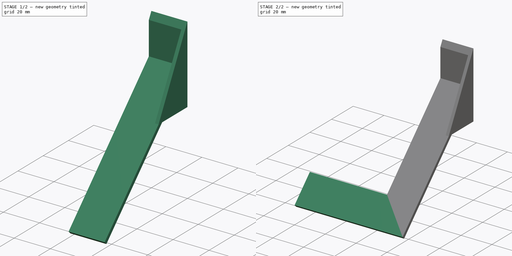
[diagram: build sequence overview — one tinted view per stage of 2, left to right]
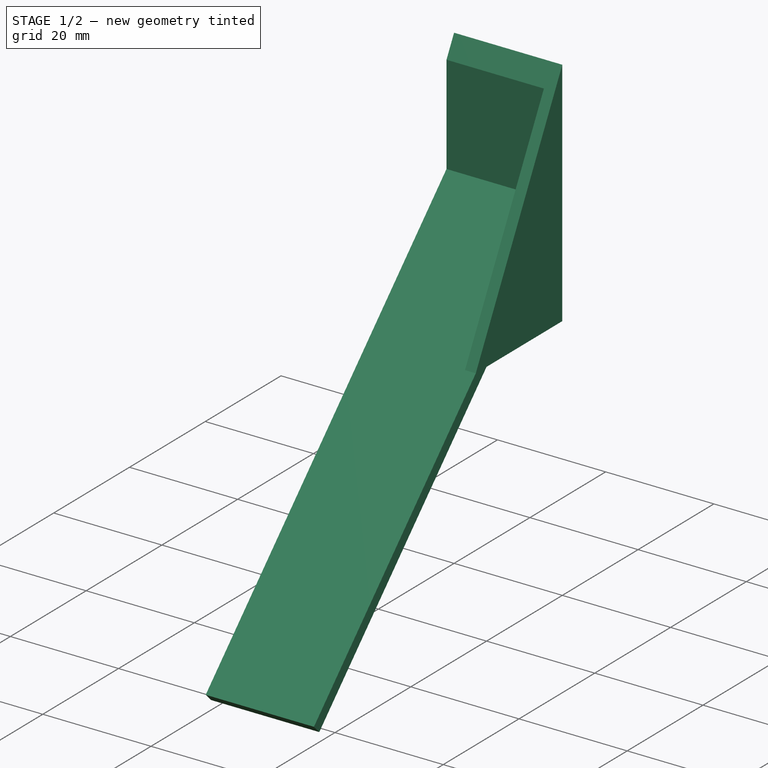
[diagram: stage 1 of 2 — iso view after this stage's code; geometry added in this stage tinted green]
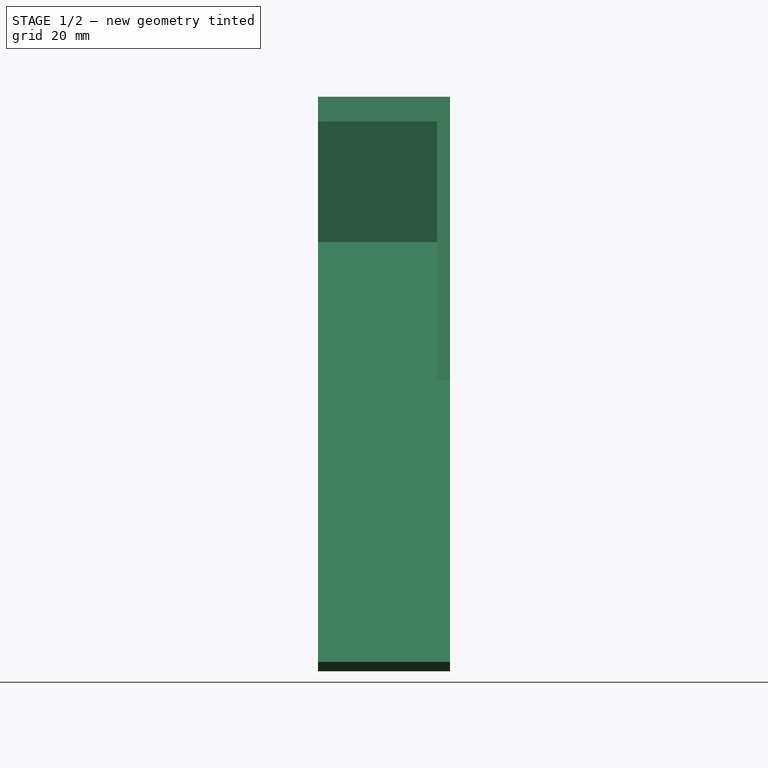
[diagram: stage 1 of 2 — front view after this stage's code; geometry added in this stage tinted green]
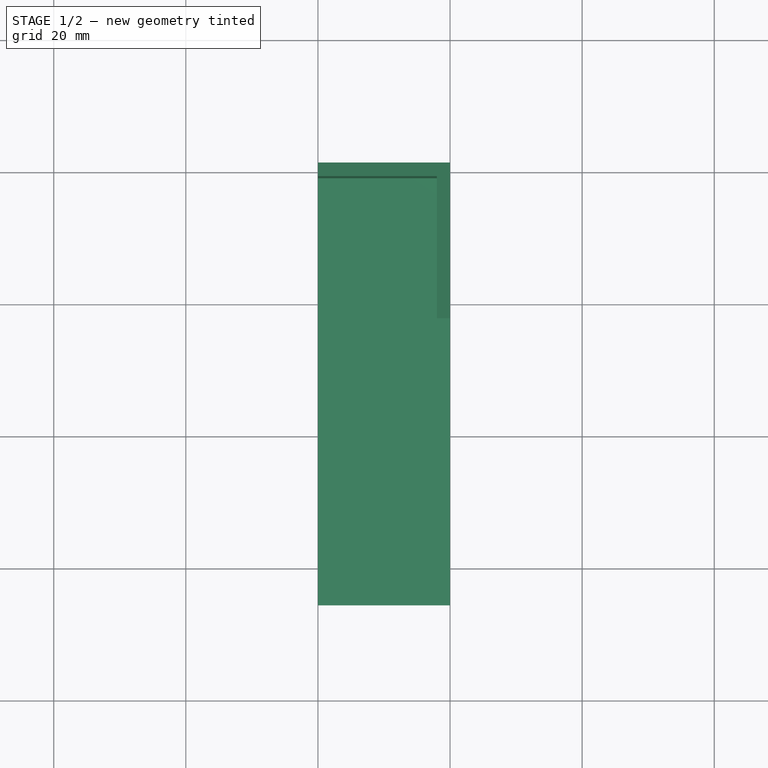
[diagram: stage 1 of 2 — top view after this stage's code; geometry added in this stage tinted green]
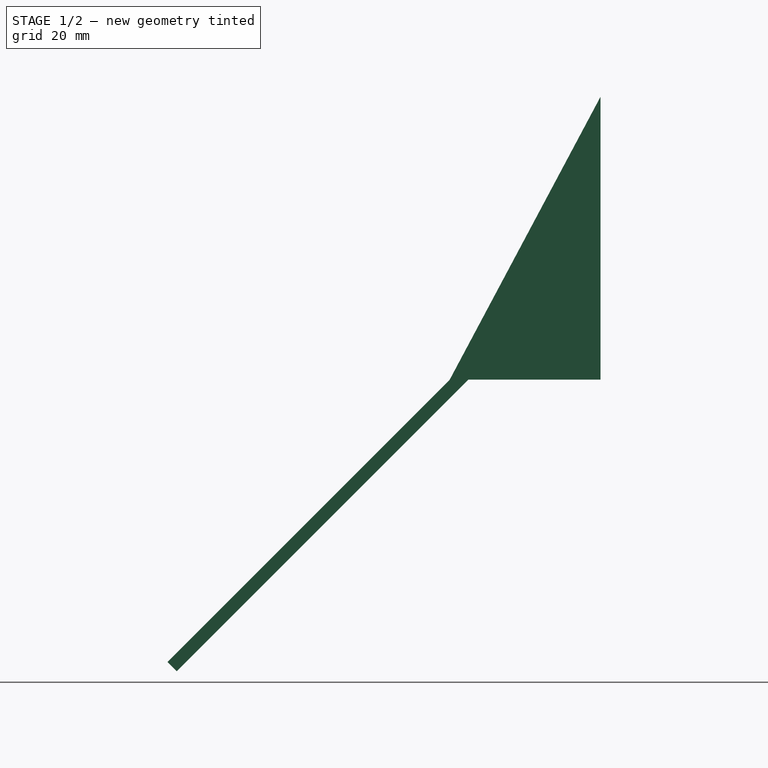
[diagram: stage 1 of 2 — right view after this stage's code; geometry added in this stage tinted green]
FCSTD DOCUMENT  (FreeCAD 1.0R39319 (Git))
Label: airConExhaustPipeGuide
License: All rights reserved
LicenseURL: https://en.wikipedia.org/wiki/All_rights_reserved
objects: PartDesign::Pad×3, Sketcher::SketchObject×1, PartDesign::Body×1
note: 12 computed .brp shape members not serialized (recipe doc carries the construction recipe); baked Part::Feature solids carry a one-line shape summary decoded from their .brp

FEATURE [Sketcher::SketchObject] Sketch
  ArcFitTolerance = 1e-06
  AttachmentSupport = -> [YZ_Plane]
  FullyConstrained = true
  MakeInternals = false
  MapMode = 5
  Placement = pos=(0,0,0) rot=(0.57735,0.57735,0.57735;2.0944rad)
  sketch-geometry (18):
    g0: LineSegment StartX=-64.1421 StartY=-44.1421 StartZ=0 EndX=-65.5563 EndY=-42.7279 EndZ=0
    g1: LineSegment StartX=0 StartY=42.8284 StartZ=0 EndX=0 EndY=22.8284 EndZ=0
    g2: LineSegment StartX=0 StartY=22.8284 StartZ=0 EndX=0 EndY=20 EndZ=0
    g3: LineSegment StartX=0 StartY=20 StartZ=0 EndX=0 EndY=0 EndZ=0
    g4: LineSegment [constr] StartX=0 StartY=22.8284 StartZ=0 EndX=-51.4142 EndY=-28.5858 EndZ=0
    g5: LineSegment StartX=-51.4142 StartY=-28.5858 StartZ=0 EndX=-65.5563 EndY=-42.7279 EndZ=0
    g6: LineSegment StartX=-64.1421 StartY=-44.1421 StartZ=0 EndX=-50 EndY=-30 EndZ=0
    g7: LineSegment [constr] StartX=-50 StartY=-30 StartZ=0 EndX=0 EndY=20 EndZ=0
    g8: LineSegment StartX=-51.4142 StartY=-28.5858 StartZ=0 EndX=-50 EndY=-30 EndZ=0
    g9: LineSegment StartX=0 StartY=0 StartZ=0 EndX=-20 EndY=0 EndZ=0
    g10: LineSegment StartX=0 StartY=42.8284 StartZ=0 EndX=-22.8284 EndY=0 EndZ=0
    g11: LineSegment StartX=-22.8284 StartY=0 StartZ=0 EndX=-20 EndY=0 EndZ=0
    g12: LineSegment StartX=-2 StartY=0 StartZ=0 EndX=-2 EndY=18 EndZ=0
    g13: LineSegment StartX=-2 StartY=18 StartZ=0 EndX=-50 EndY=-30 EndZ=0
    g14: LineSegment StartX=-51.4142 StartY=-28.5858 StartZ=0 EndX=-2 EndY=20.8284 EndZ=0
    g15: LineSegment StartX=-2 StartY=20.8284 StartZ=0 EndX=-2 EndY=39.0762 EndZ=0
    g16: LineSegment StartX=-2 StartY=39.0762 StartZ=0 EndX=0 EndY=42.8284 EndZ=0
    g17: LineSegment StartX=-2 StartY=0 StartZ=0 EndX=0 EndY=0 EndZ=0
  constraints (49):
    c: PointOnObject(g1,g-2)
    c: Vertical(g1)
    c: Coincident(g2,g1)
    c: PointOnObject(g2,g-2)
    c: Coincident(g3,g2)
    c: Coincident(g4,g1)
    c: Coincident(g5,g4)
    c: Coincident(g5,g0)
    c: Coincident(g7,g6)
    c: Coincident(g7,g2)
    c: Parallel(g4,g5)
    c: Parallel(g7,g6)
    c: Parallel(g7,g4)
    c: Coincident(g8,g4)
    c: Coincident(g8,g6)
    c: Perpendicular(g0,g6)
    c: Parallel(g8,g0)
    c: Distance(g0,g0) = 2
    c: Distance(g6,g6) = 20
    c: Distance(g6,g3) = 50
    c: Equal(g3,g1)
    c: Angle(g7,g3) = 0.785398
    c: Coincident(g6,g0)
    c: Coincident(g3,g-1)
    c: Coincident(g9,g3)
    c: PointOnObject(g9,g7)
    c: Horizontal(g9)
    c: Coincident(g10,g1)
    c: PointOnObject(g10,g4)
    c: PointOnObject(g10,g-1)
    c: DistanceY(g3,g3) = 20
    c: Coincident(g11,g10)
    c: Coincident(g11,g9)
    c: PointOnObject(g12,g9)
    c: PointOnObject(g12,g7)
    c: Vertical(g12)
    c: Coincident(g13,g12)
    c: Coincident(g13,g6)
    c: Coincident(g14,g4)
    c: PointOnObject(g14,g4)
    c: Coincident(g15,g14)
    c: PointOnObject(g15,g10)
    c: Vertical(g15)
    c: Coincident(g16,g15)
    c: Coincident(g16,g1)
    c: Distance(g1,g15) = 2
    c: PointOnObject(g12,g15)
    c: Coincident(g17,g12)
    c: Coincident(g17,g3)
FEATURE [PartDesign::Pad] Pad
  Direction = (1,0,0)
  Length = 2
  Length2 = 10
  Placement = pos=(0,0,0) rot=(1,1,1;2.0944rad)
  Profile = -> Sketch [Edge10,Edge12,Edge11,Edge6,Edge7,Edge8]
  ReferenceAxis = -> Sketch [N_Axis]
  Refine = true
  Reversed = true
  Suppressed = false
  Type = 0
FEATURE [PartDesign::Pad] Pad001
  BaseFeature = -> Pad
  Direction = (1,0,0)
  Length = 20
  Length2 = 10
  Placement = pos=(0,0,0) rot=(1,1,1;2.0944rad)
  Profile = -> Sketch [Edge13,Edge9,Edge8,Edge7,Edge6,Edge5,Edge4,Edge3,Edge14,Edge2,Edge16,Edge1]
  ReferenceAxis = -> Sketch [N_Axis]
  Refine = true
  Reversed = true
  Suppressed = false
  Type = 0
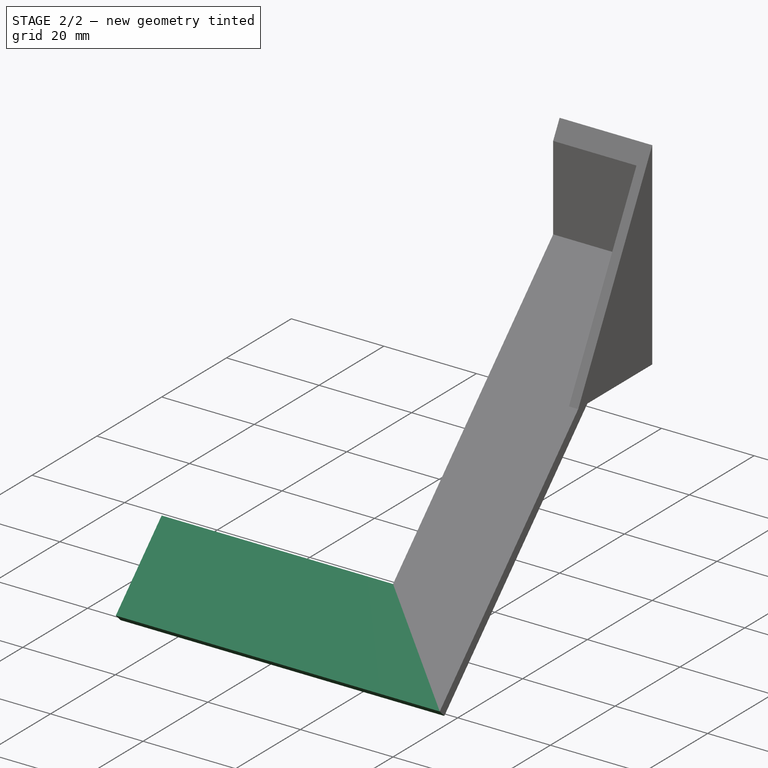
[diagram: stage 2 of 2 — iso view after this stage's code; geometry added in this stage tinted green]
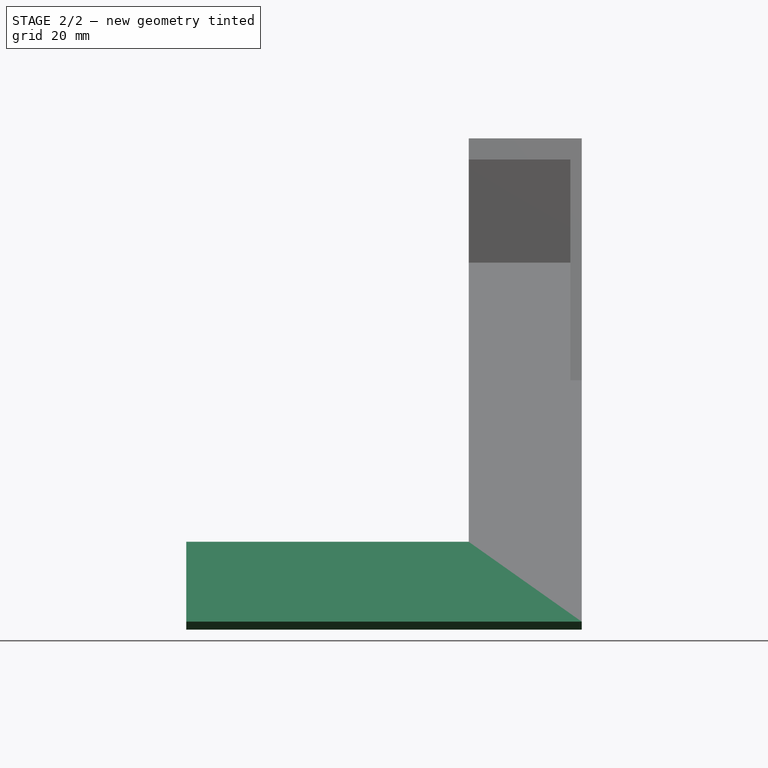
[diagram: stage 2 of 2 — front view after this stage's code; geometry added in this stage tinted green]
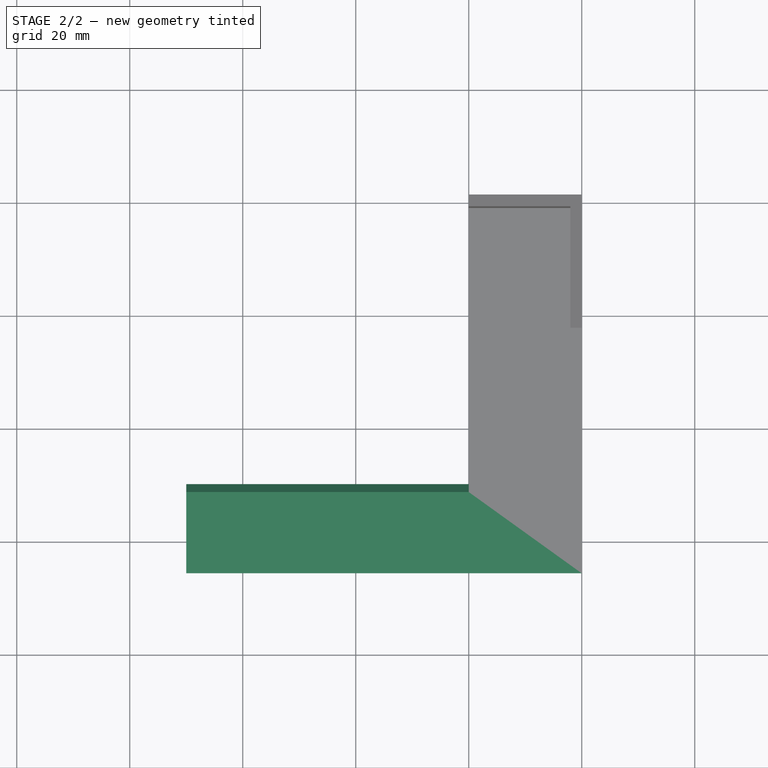
[diagram: stage 2 of 2 — top view after this stage's code; geometry added in this stage tinted green]
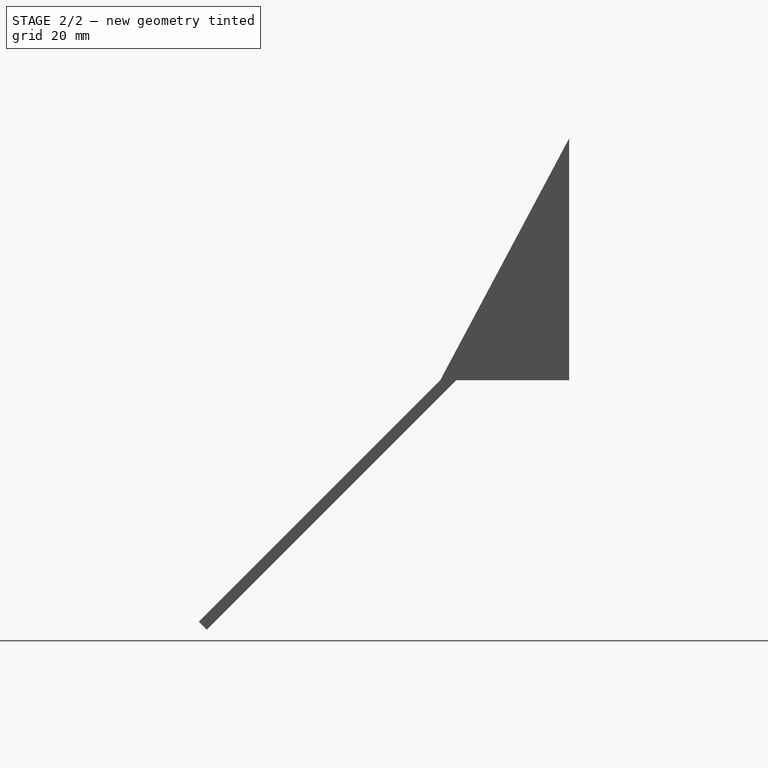
[diagram: stage 2 of 2 — right view after this stage's code; geometry added in this stage tinted green]
FEATURE [PartDesign::Pad] Pad002
  BaseFeature = -> Pad001
  Direction = (1,0,0)
  Length = 70
  Length2 = 10
  Placement = pos=(0,0,0) rot=(1,1,1;2.0944rad)
  Profile = -> Sketch [Edge16,Edge1,Edge2,Edge15]
  ReferenceAxis = -> Sketch [N_Axis]
  Refine = true
  Reversed = true
  Suppressed = false
  Type = 0
FEATURE [PartDesign::Body] Body
  AllowCompound = false
  Group = -> [Sketch,Pad,Pad001,Pad002]
  Origin = -> Origin
  Tip = -> Pad002
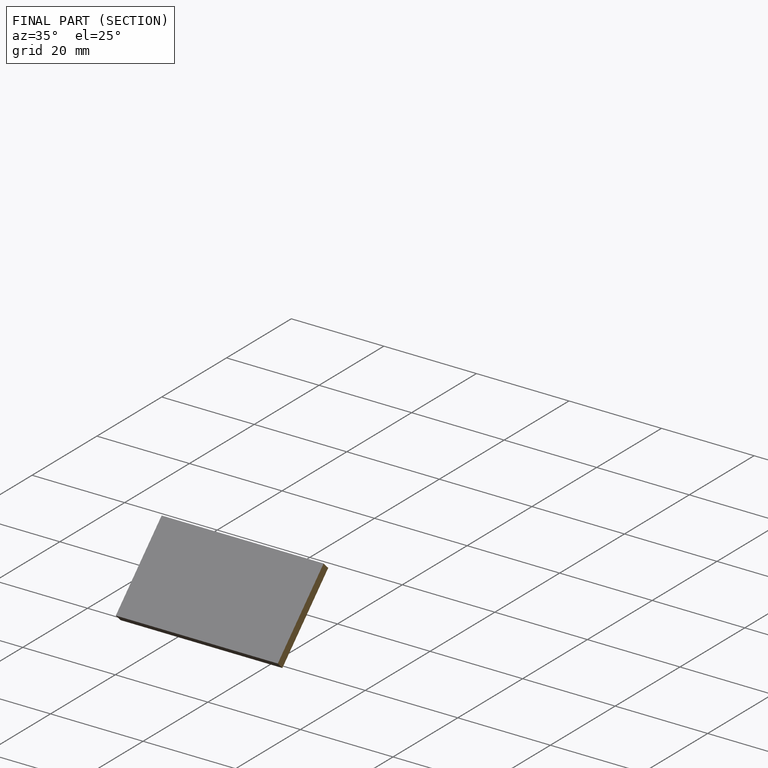
[diagram: finished part — half-section view (interior)]
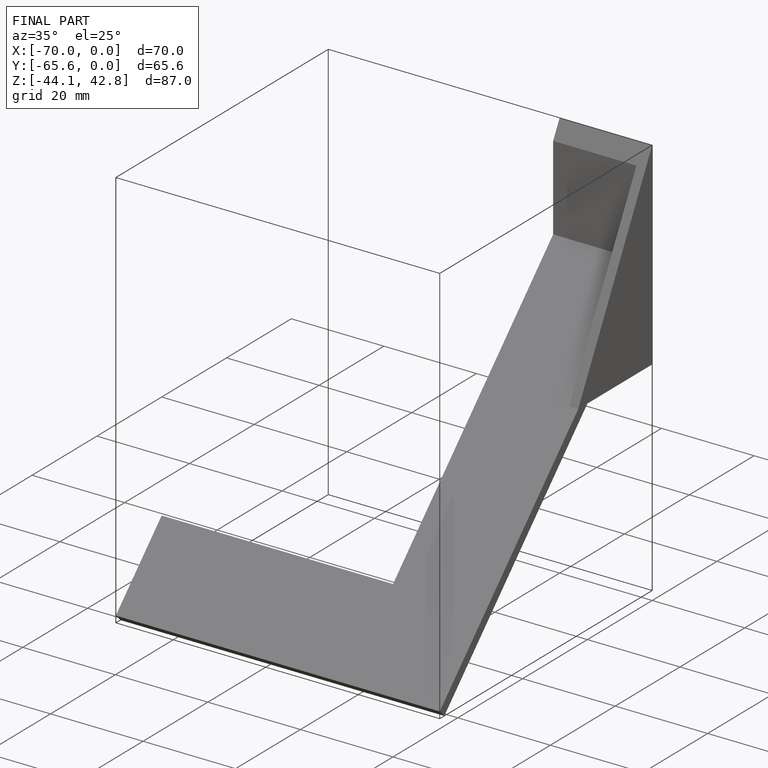
[diagram: finished part — iso view with bounding-box wireframe]
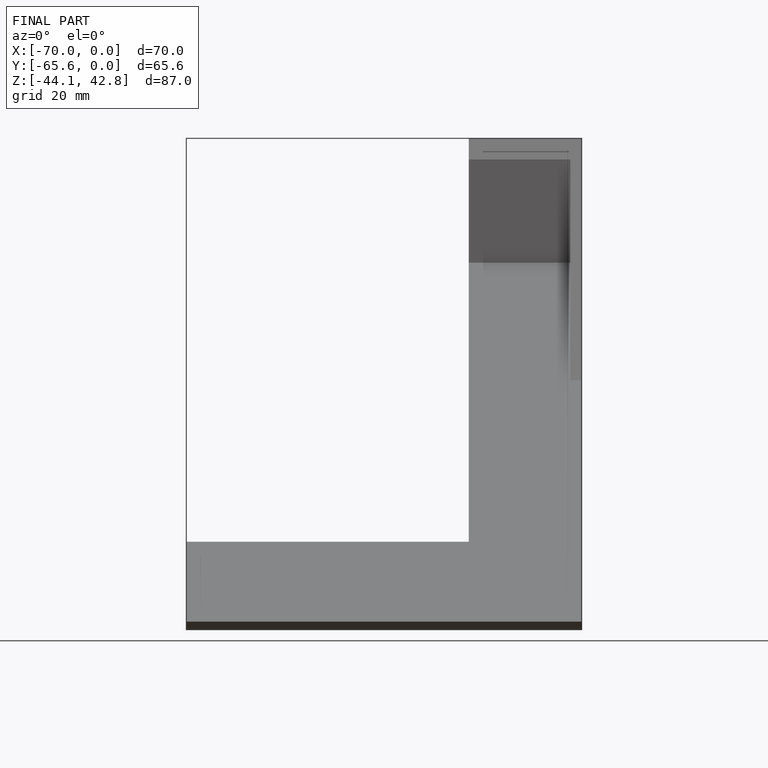
[diagram: finished part — front view with bounding-box wireframe]
